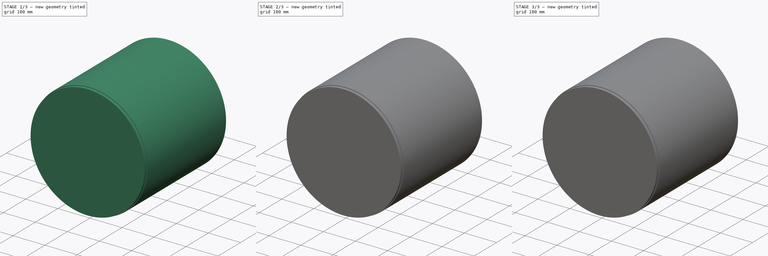
[diagram: build sequence overview — one tinted view per stage of 3, left to right]
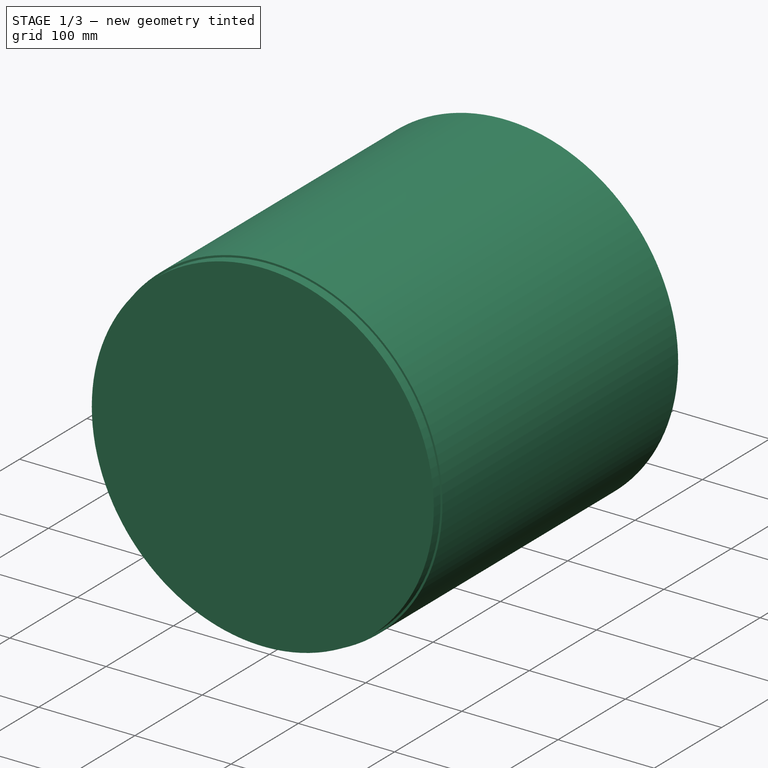
[diagram: stage 1 of 3 — iso view after this stage's code; geometry added in this stage tinted green]
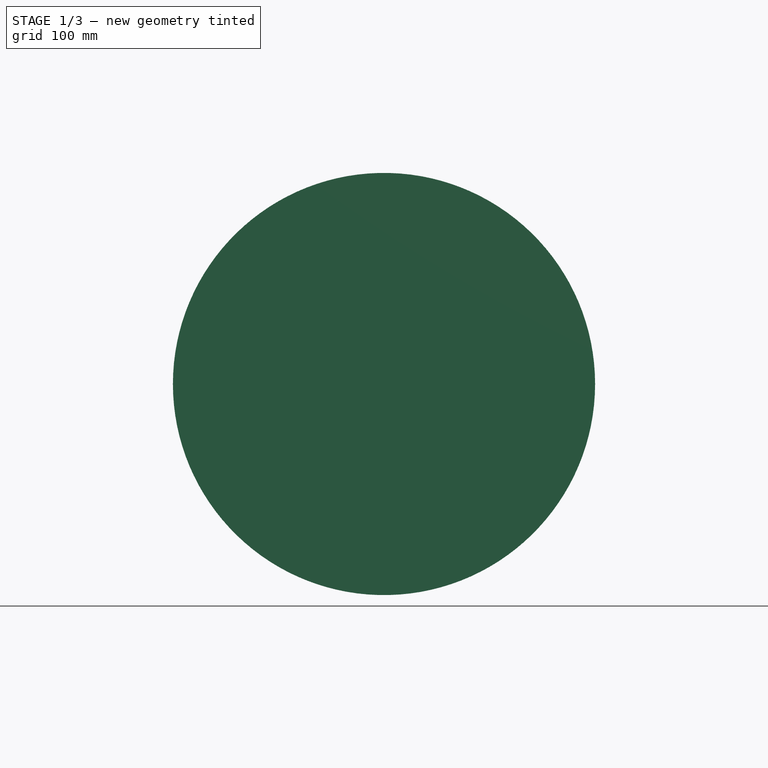
[diagram: stage 1 of 3 — front view after this stage's code; geometry added in this stage tinted green]
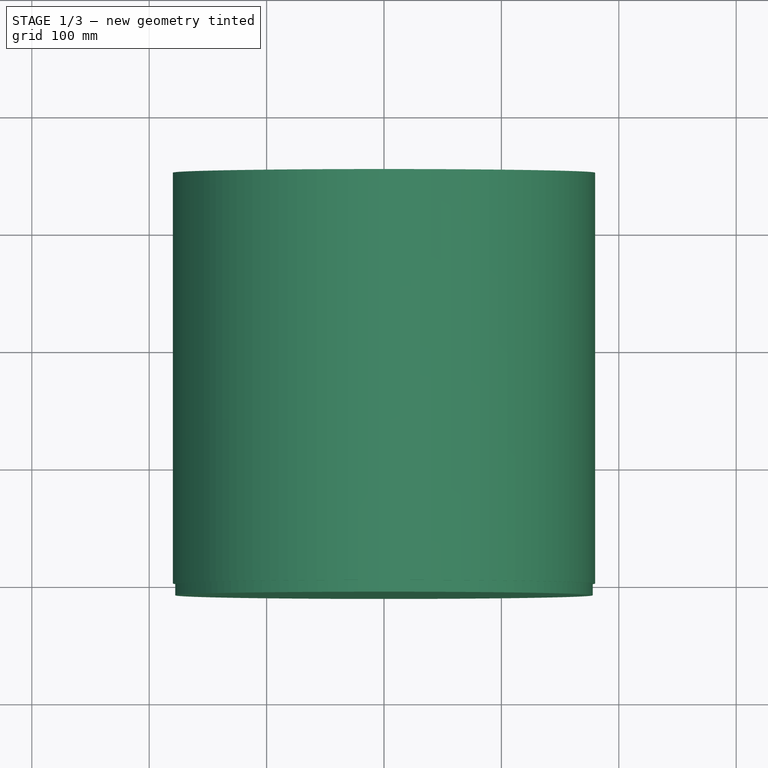
[diagram: stage 1 of 3 — top view after this stage's code; geometry added in this stage tinted green]
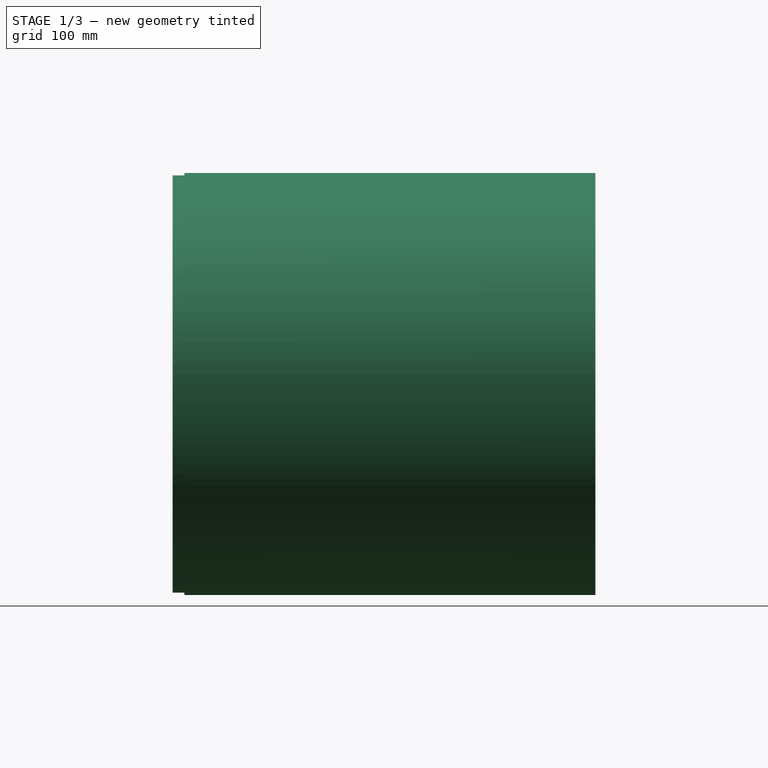
[diagram: stage 1 of 3 — right view after this stage's code; geometry added in this stage tinted green]
FCSTD DOCUMENT  (FreeCAD 0.18R16093 +53 (Git))
Label: Visaton_BG20_Sketch
License: All rights reserved
LicenseURL: http://en.wikipedia.org/wiki/All_rights_reserved
objects: Sketcher::SketchObject×5, PartDesign::Body×5, PartDesign::Pad×4, PartDesign::Revolution×1, Part::Fuse×1
note: 21 computed .brp shape members not serialized (recipe doc carries the construction recipe); baked Part::Feature solids carry a one-line shape summary decoded from their .brp

FEATURE [PartDesign::Body] Body002  label="Platte"
  Group = -> [Sketch002,Pad001]
  Origin = -> Origin002
  Placement = pos=(0,-10,0) rot=(0,0,1;0rad)
  Tip = -> Pad001
FEATURE [Sketcher::SketchObject] Sketch003
  MapMode = 5
  Placement = pos=(0,0,0) rot=(1,0,0;1.5708rad)
  Support = -> [XZ_Plane003]
  sketch-geometry (2):
    g0: Circle CenterX=0 CenterY=0 CenterZ=0 NormalX=0 NormalY=0 NormalZ=1 AngleXU=0 Radius=177.8
    g1: Circle CenterX=0 CenterY=0 CenterZ=0 NormalX=0 NormalY=0 NormalZ=1 AngleXU=0 Radius=179.8
  constraints (4):
    c: Coincident(g0,g-1)
    c: Radius(g0) = 177.8
    c: Radius(g1) = 179.8
    c: Coincident(g1,g0)
FEATURE [PartDesign::Pad] Pad002  label="Drum_Pad"
  Length = 350
  Length2 = 100
  Placement = pos=(0,0,0) rot=(1,0,0;1.5708rad)
  Profile = -> Sketch003
  Reversed = true
  Type = 0
FEATURE [PartDesign::Body] Body003  label="Drum_14Zoll"
  Group = -> [Sketch003,Pad002]
  Origin = -> Origin003
  Placement = pos=(0,-10,0) rot=(0,0,1;0rad)
  Tip = -> Pad002
FEATURE [Sketcher::SketchObject] Sketch004
  MapMode = 5
  Placement = pos=(0,0,0) rot=(1,0,0;1.5708rad)
  Support = -> [XZ_Plane004]
  sketch-geometry (1):
    g0: Circle CenterX=0 CenterY=0 CenterZ=0 NormalX=0 NormalY=0 NormalZ=1 AngleXU=0 Radius=177.8
  constraints (2):
    c: Coincident(g0,g-1)
    c: Radius(g0) = 177.8
FEATURE [PartDesign::Pad] Pad003
  Length = 10
  Length2 = 100
  Placement = pos=(0,0,0) rot=(1,0,0;1.5708rad)
  Profile = -> Sketch004
  Type = 0
FEATURE [PartDesign::Body] Body004  label="Schlagfell"
  Group = -> [Sketch004,Pad003]
  Origin = -> Origin004
  Placement = pos=(0,340,0) rot=(0,0,1;0rad)
  Tip = -> Pad003
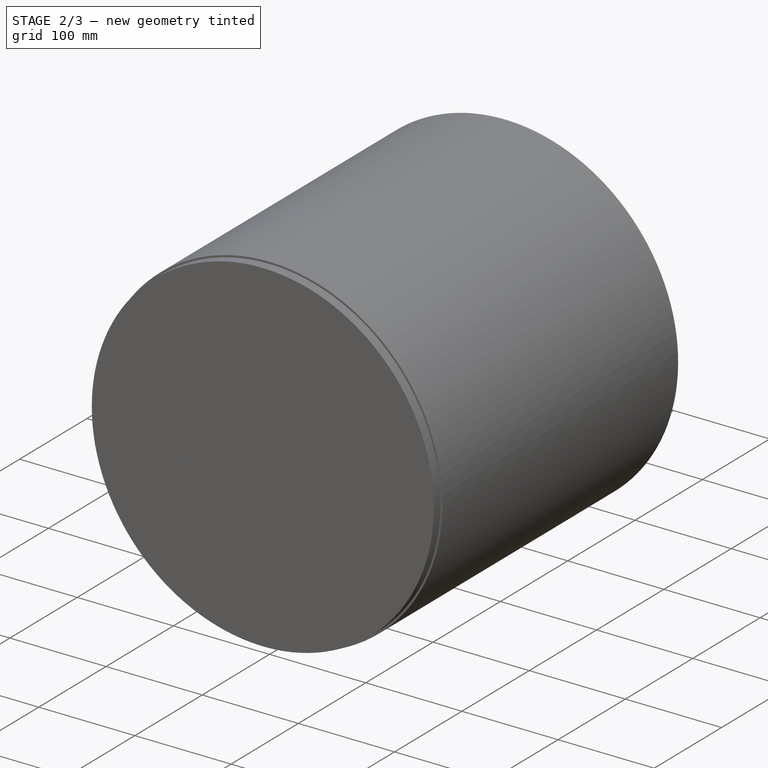
[diagram: stage 2 of 3 — iso view after this stage's code; geometry added in this stage tinted green]
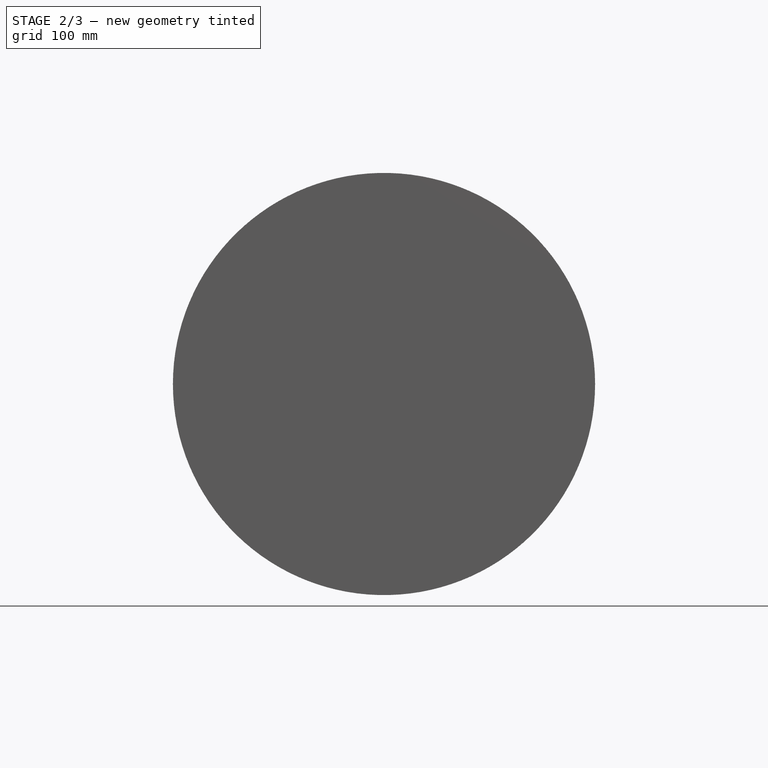
[diagram: stage 2 of 3 — front view after this stage's code; geometry added in this stage tinted green]
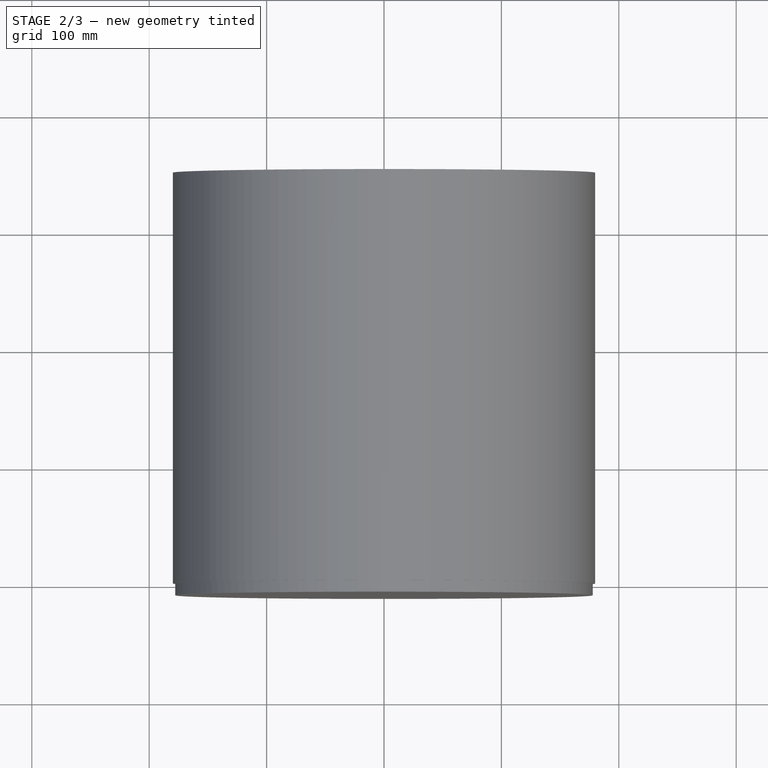
[diagram: stage 2 of 3 — top view after this stage's code; geometry added in this stage tinted green]
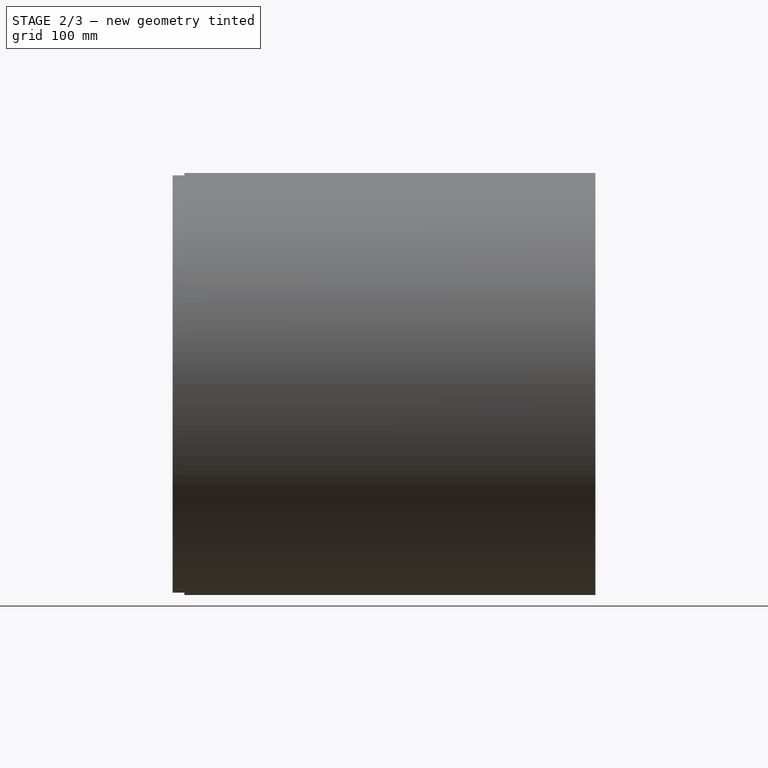
[diagram: stage 2 of 3 — right view after this stage's code; geometry added in this stage tinted green]
FEATURE [PartDesign::Body] Body
  Group = -> [Sketch,Pad]
  Origin = -> Origin
  Tip = -> Pad
FEATURE [Sketcher::SketchObject] Sketch001
  MapMode = 5
  Placement = pos=(0,0,0) rot=(0.57735,0.57735,0.57735;2.0944rad)
  Support = -> [YZ_Plane001]
  sketch-geometry (7):
    g0: LineSegment StartX=0 StartY=91.5 StartZ=0 EndX=0 EndY=0 EndZ=0
    g1: LineSegment StartX=81 StartY=0 StartZ=0 EndX=81 EndY=50 EndZ=0
    g2: LineSegment StartX=81 StartY=50 StartZ=0 EndX=61 EndY=50 EndZ=0
    g3: LineSegment StartX=61 StartY=50 StartZ=0 EndX=61 EndY=30 EndZ=0
    g4: LineSegment StartX=61 StartY=30 StartZ=0 EndX=45 EndY=30 EndZ=0
    g5: LineSegment StartX=45 StartY=30 StartZ=0 EndX=0 EndY=91.5 EndZ=0
    g6: LineSegment StartX=0 StartY=0 StartZ=0 EndX=81 EndY=0 EndZ=0
  constraints (20):
    c: Coincident(g1,g2)
    c: Coincident(g2,g3)
    c: Coincident(g3,g4)
    c: Coincident(g4,g5)
    c: Coincident(g5,g0)
    c: DistanceY(g0,g0) = 91.5
    c: Vertical(g0)
    c: Vertical(g1)
    c: Vertical(g3)
    c: Horizontal(g4)
    c: Horizontal(g2)
    c: DistanceY(g3,g3) = 20
    c: DistanceY(g1,g1) = 50
    c: DistanceX(g0,g1) = 81
    c: DistanceX(g2,g2) = 20
    c: DistanceY(g1,g0) = 0
    c: Coincident(g6,g1)
    c: Coincident(g0,g6)
    c: Coincident(g0,g-1)
    c: DistanceX(g4,g4) = 16
FEATURE [PartDesign::Revolution] Revolution
  Angle = 360
  Axis = (3e-16,1,-2e-16)
  Base = (0,0,0)
  Placement = pos=(0,0,0) rot=(0.57735,0.57735,0.57735;2.0944rad)
  Profile = -> Sketch001
  ReferenceAxis = -> Sketch001 [H_Axis]
FEATURE [Sketcher::SketchObject] Sketch002
  MapMode = 5
  Placement = pos=(0,0,0) rot=(1,0,0;1.5708rad)
  Support = -> [XZ_Plane002]
  sketch-geometry (6):
    g0: Circle CenterX=0 CenterY=0 CenterZ=0 NormalX=0 NormalY=0 NormalZ=1 AngleXU=0 Radius=177.8
    g1: Circle CenterX=0 CenterY=0 CenterZ=0 NormalX=0 NormalY=0 NormalZ=1 AngleXU=0 Radius=91.5
    g2: Circle CenterX=-69.65 CenterY=-69.65 CenterZ=0 NormalX=0 NormalY=0 NormalZ=1 AngleXU=0 Radius=2.5
    g3: Circle CenterX=69.65 CenterY=-69.65 CenterZ=0 NormalX=0 NormalY=0 NormalZ=1 AngleXU=0 Radius=2.5
    g4: Circle CenterX=-69.65 CenterY=69.65 CenterZ=0 NormalX=0 NormalY=0 NormalZ=1 AngleXU=0 Radius=2.5
    g5: Circle CenterX=69.65 CenterY=69.65 CenterZ=0 NormalX=0 NormalY=0 NormalZ=1 AngleXU=0 Radius=2.5
  constraints (16):
    c: Coincident(g0,g-1)
    c: Radius(g0) = 177.8
    c: Radius(g1) = 91.5
    c: Coincident(g1,g0)
    c: DistanceX(g2,g0) = 69.65
    c: Radius(g2) = 2.5
    c: Radius(g3) = 2.5
    c: Radius(g4) = 2.5
    c: Radius(g5) = 2.5
    c: DistanceX(g0,g3) = 69.65
    c: DistanceX(g0,g5) = 69.65
    c: DistanceX(g4,g0) = 69.65
    c: DistanceY(g2,g0) = 69.65
    c: DistanceY(g3,g0) = 69.65
    c: DistanceY(g0,g4) = 69.65
    c: DistanceY(g0,g5) = 69.65
FEATURE [PartDesign::Pad] Pad001
  Length = 10
  Length2 = 100
  Placement = pos=(0,0,0) rot=(1,0,0;1.5708rad)
  Profile = -> Sketch002
  Type = 0
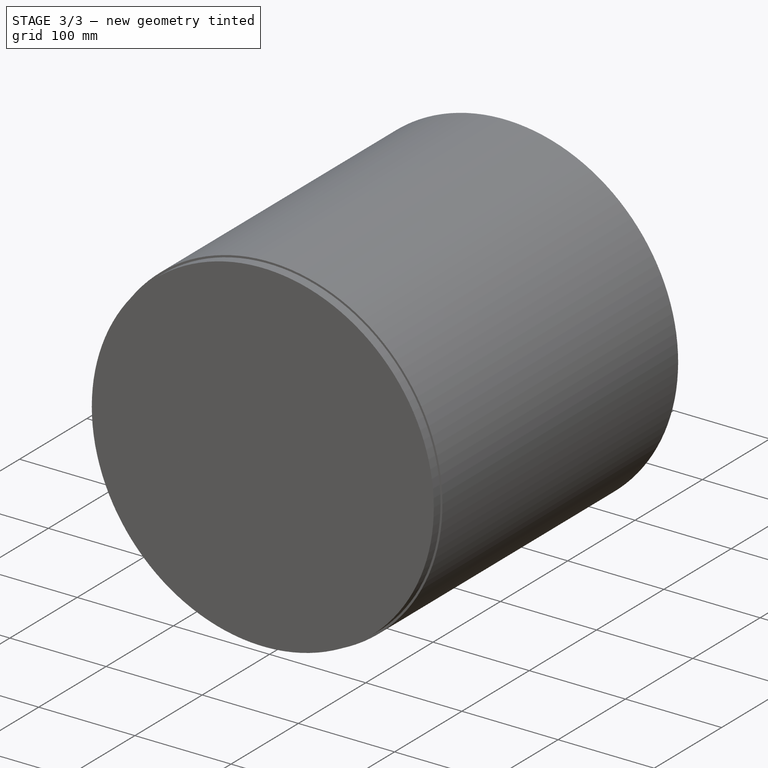
[diagram: stage 3 of 3 — iso view after this stage's code; geometry added in this stage tinted green]
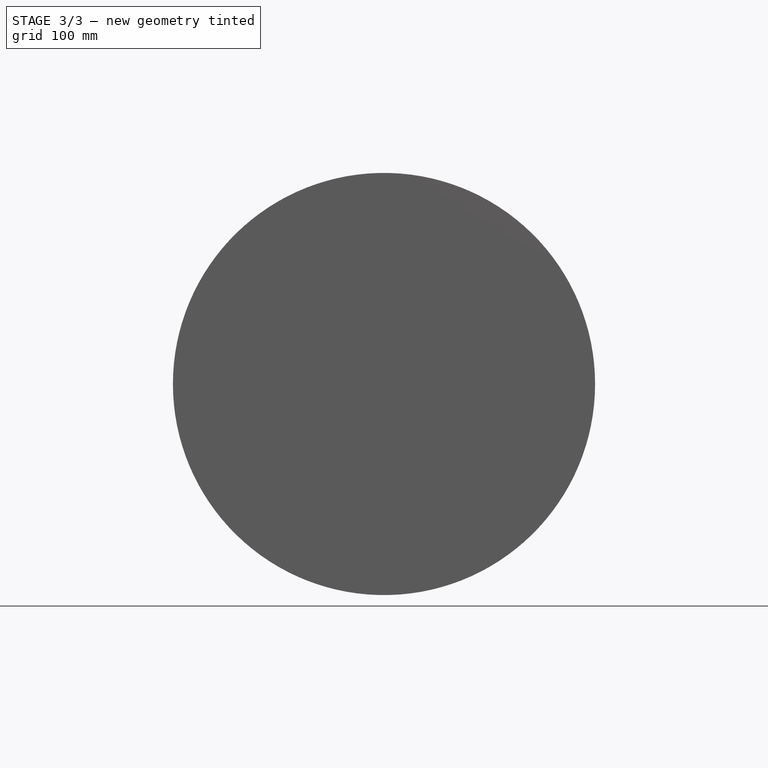
[diagram: stage 3 of 3 — front view after this stage's code; geometry added in this stage tinted green]
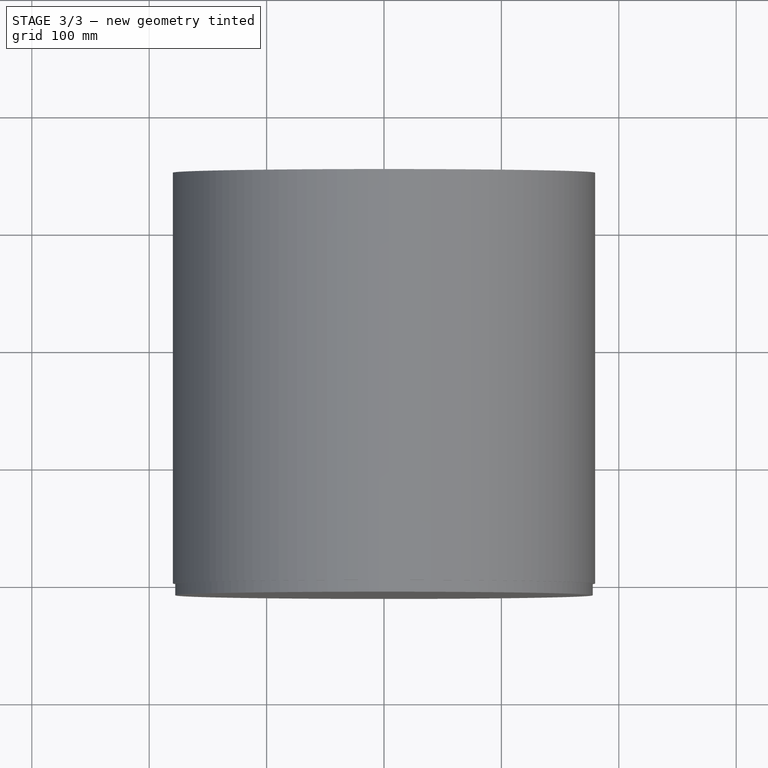
[diagram: stage 3 of 3 — top view after this stage's code; geometry added in this stage tinted green]
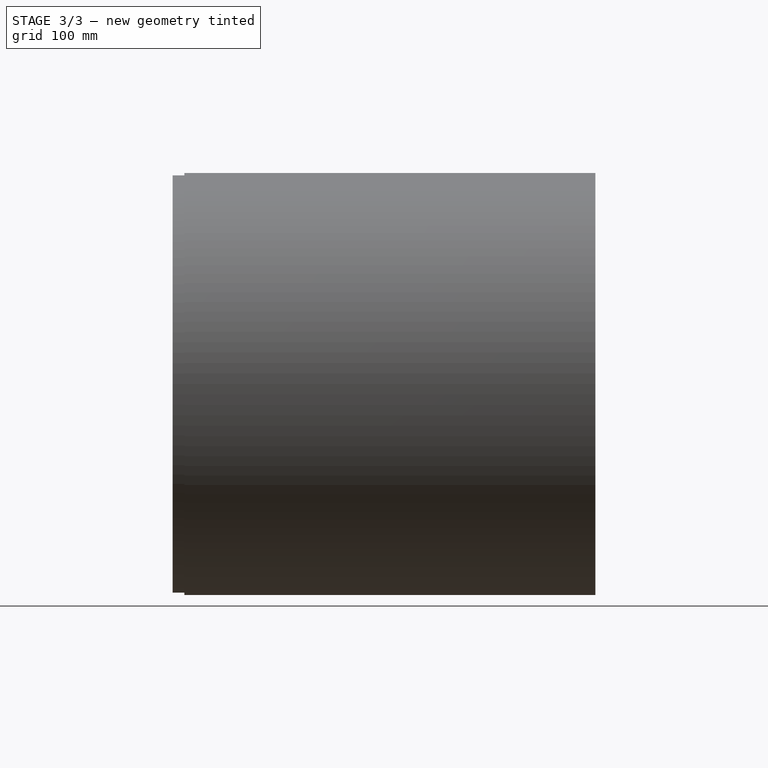
[diagram: stage 3 of 3 — right view after this stage's code; geometry added in this stage tinted green]
FEATURE [Sketcher::SketchObject] Sketch
  MapMode = 5
  Placement = pos=(0,0,0) rot=(1,0,0;1.5708rad)
  Support = -> [XZ_Plane]
  sketch-geometry (6):
    g0: Circle CenterX=0 CenterY=0 CenterZ=0 NormalX=0 NormalY=0 NormalZ=1 AngleXU=0 Radius=102.5
    g1: Circle CenterX=0 CenterY=0 CenterZ=0 NormalX=0 NormalY=0 NormalZ=1 AngleXU=0 Radius=91.5
    g2: Circle CenterX=69.65 CenterY=69.65 CenterZ=0 NormalX=0 NormalY=0 NormalZ=1 AngleXU=0 Radius=2.5
    g3: Circle CenterX=-69.65 CenterY=69.65 CenterZ=0 NormalX=0 NormalY=0 NormalZ=1 AngleXU=0 Radius=2.5
    g4: Circle CenterX=-69.65 CenterY=-69.65 CenterZ=0 NormalX=0 NormalY=0 NormalZ=1 AngleXU=0 Radius=2.5
    g5: Circle CenterX=69.65 CenterY=-69.65 CenterZ=0 NormalX=0 NormalY=0 NormalZ=1 AngleXU=0 Radius=2.5
  constraints (16):
    c: Radius(g0) = 102.5
    c: Coincident(g0,g-1)
    c: Radius(g1) = 91.5
    c: Coincident(g1,g0)
    c: Radius(g2) = 2.5
    c: DistanceX(g0,g2) = 69.65
    c: DistanceY(g0,g2) = 69.65
    c: Equal(g2,g3) = 2.5
    c: DistanceX(g3,g0) = 69.65
    c: DistanceX(g0,g5) = 69.65
    c: DistanceX(g4,g0) = 69.65
    c: DistanceY(g0,g3) = 69.65
    c: DistanceY(g4,g0) = 69.65
    c: DistanceY(g5,g0) = 69.65
    c: Radius(g5) = 2.5
    c: Radius(g4) = 2.5
FEATURE [PartDesign::Pad] Pad  label="Front_Pad"
  Length = 8
  Length2 = 100
  Placement = pos=(0,0,0) rot=(1,0,0;1.5708rad)
  Profile = -> Sketch
  Type = 0
FEATURE [PartDesign::Body] Body001  label="Back"
  Group = -> [Sketch001,Revolution]
  Origin = -> Origin001
  Tip = -> Revolution
FEATURE [Part::Fuse] Fusion  label="BG20"
  Base = -> Body
  Tool = -> Body001
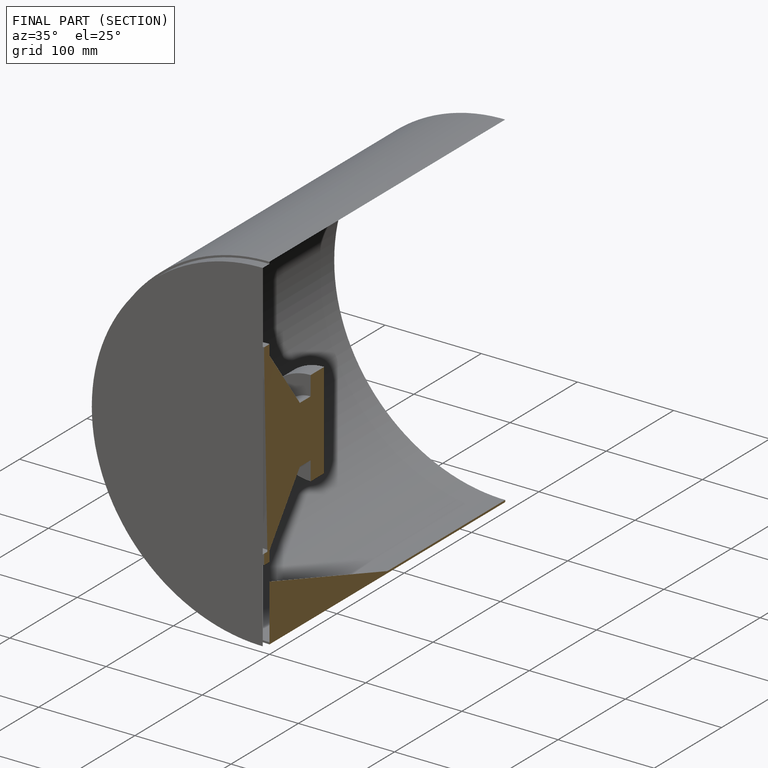
[diagram: finished part — half-section view (interior)]
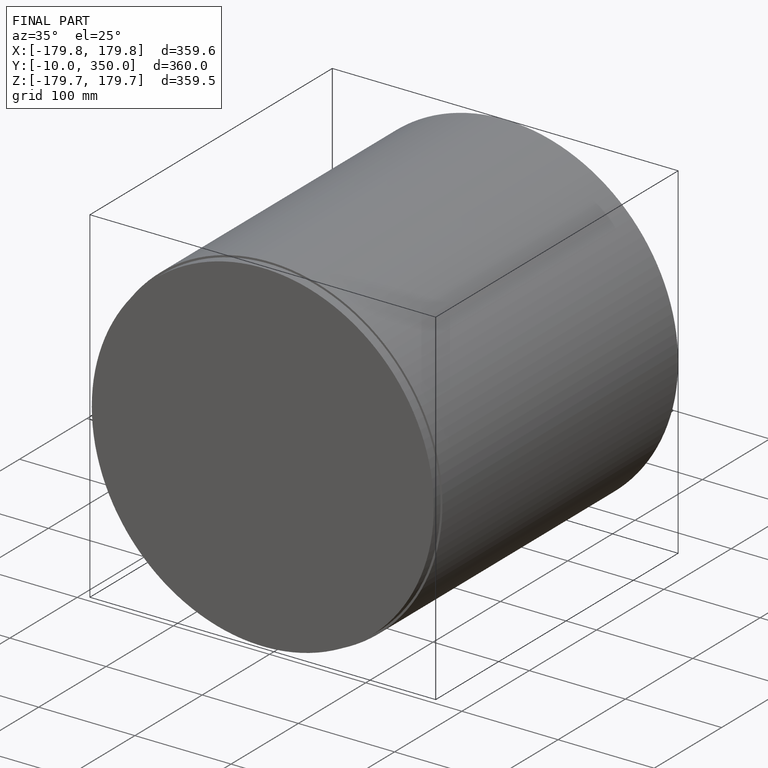
[diagram: finished part — iso view with bounding-box wireframe]
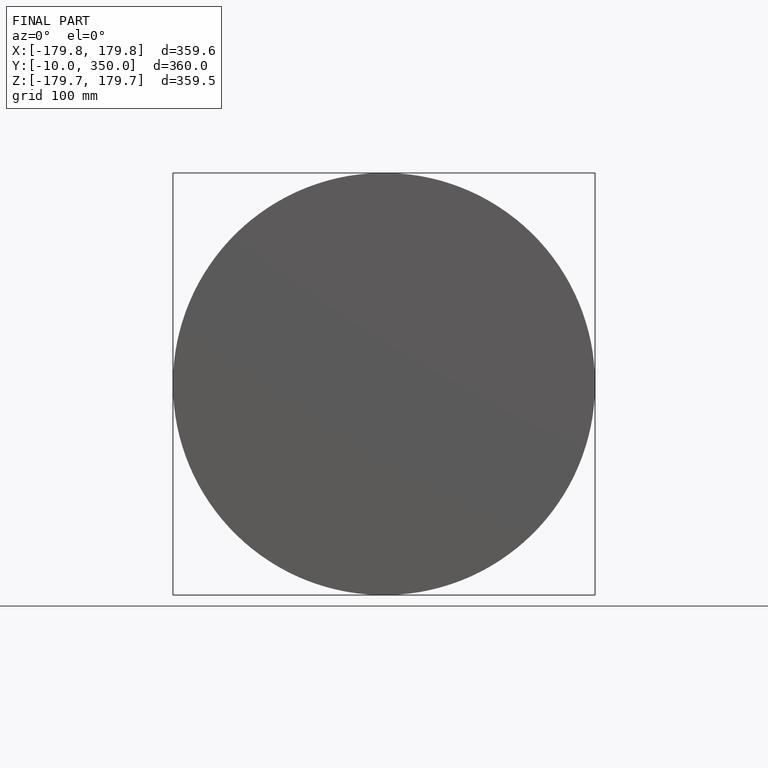
[diagram: finished part — front view with bounding-box wireframe]
